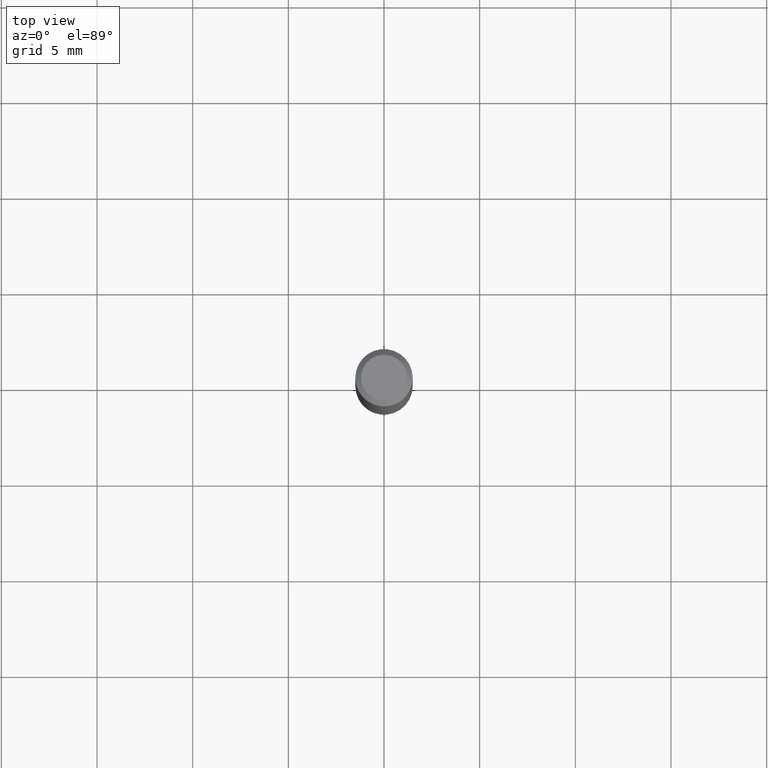
[diagram: clean part render]
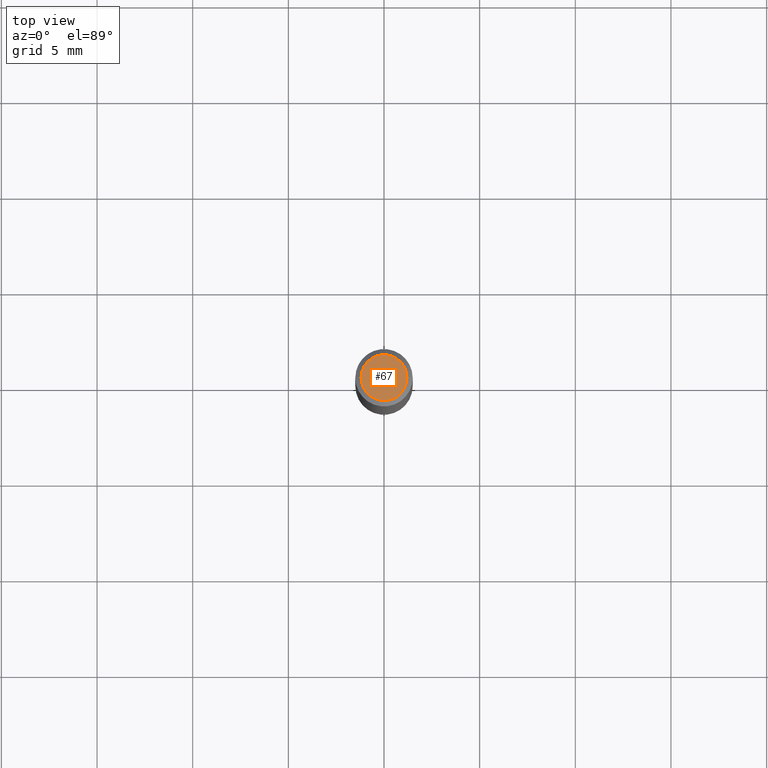
[diagram: same view with one face highlighted and labeled with its STEP entity id]
A machine part, top view. The second image highlights one B-rep face of the part: STEP entity #67.
In plain terms, the highlighted planar face has unit normal (0, -0, -1).
Its self-contained STEP definition (entity closure, byte-faithful):
#7 = EDGE_CURVE ( 'NONE', #435, #362, #287, .T. ) ;
#54 = CARTESIAN_POINT ( 'NONE',  ( 8.265746106709734507E-48, -1.180129479067563789E-33, -3.380025165646692144E-19 ) ) ;
#67 = ADVANCED_FACE ( 'NONE', ( #286 ), #170, .F. ) ;
#83 = CARTESIAN_POINT ( 'NONE',  ( 8.265746106709734507E-48, -1.180129479067563789E-33, -3.380025165646692144E-19 ) ) ;
#97 = AXIS2_PLACEMENT_3D ( 'NONE', #54, #135, #250 ) ;
#126 = AXIS2_PLACEMENT_3D ( 'NONE', #279, #469, #137 ) ;
#127 = CARTESIAN_POINT ( 'NONE',  ( -0.04724000000000000421, 3.504923541997677355E-16, -3.380025165670481712E-19 ) ) ;
#135 = DIRECTION ( 'NONE',  ( -2.445468806185136597E-29, 3.491481338843145583E-15, 1.000000000000000000 ) ) ;
#137 = DIRECTION ( 'NONE',  ( -1.000000000000000000, 6.982962677686265922E-15, -4.876176775795935793E-29 ) ) ;
#162 = CARTESIAN_POINT ( 'NONE',  ( 0.04724000000000000421, -3.852183633974369345E-16, -3.380025165621689721E-19 ) ) ;
#167 = DIRECTION ( 'NONE',  ( 1.000000000000000000, -6.982962677686266711E-15, 4.876185090822587894E-29 ) ) ;
#170 = PLANE ( 'NONE',  #126 ) ;
#181 = AXIS2_PLACEMENT_3D ( 'NONE', #83, #241, #167 ) ;
#241 = DIRECTION ( 'NONE',  ( -2.445468806185136597E-29, 3.491481338843145583E-15, 1.000000000000000000 ) ) ;
#250 = DIRECTION ( 'NONE',  ( 1.000000000000000000, -6.982962677686266711E-15, 4.876185090822587894E-29 ) ) ;
#279 = CARTESIAN_POINT ( 'NONE',  ( 4.132873053354867254E-48, -5.900647395337818946E-34, -1.690012582823346072E-19 ) ) ;
#286 = FACE_OUTER_BOUND ( 'NONE', #402, .T. ) ;
#287 = CIRCLE ( 'NONE', #97, 0.04724000000000000421 ) ;
#329 = CIRCLE ( 'NONE', #181, 0.04724000000000000421 ) ;
#362 = VERTEX_POINT ( 'NONE', #162 ) ;
#381 = EDGE_CURVE ( 'NONE', #362, #435, #329, .T. ) ;
#390 = ORIENTED_EDGE ( 'NONE', *, *, #381, .T. ) ;
#402 = EDGE_LOOP ( 'NONE', ( #406, #390 ) ) ;
#406 = ORIENTED_EDGE ( 'NONE', *, *, #7, .T. ) ;
#435 = VERTEX_POINT ( 'NONE', #127 ) ;
#469 = DIRECTION ( 'NONE',  ( 2.438088387897960049E-29, -3.491481338843145188E-15, -1.000000000000000000 ) ) ;